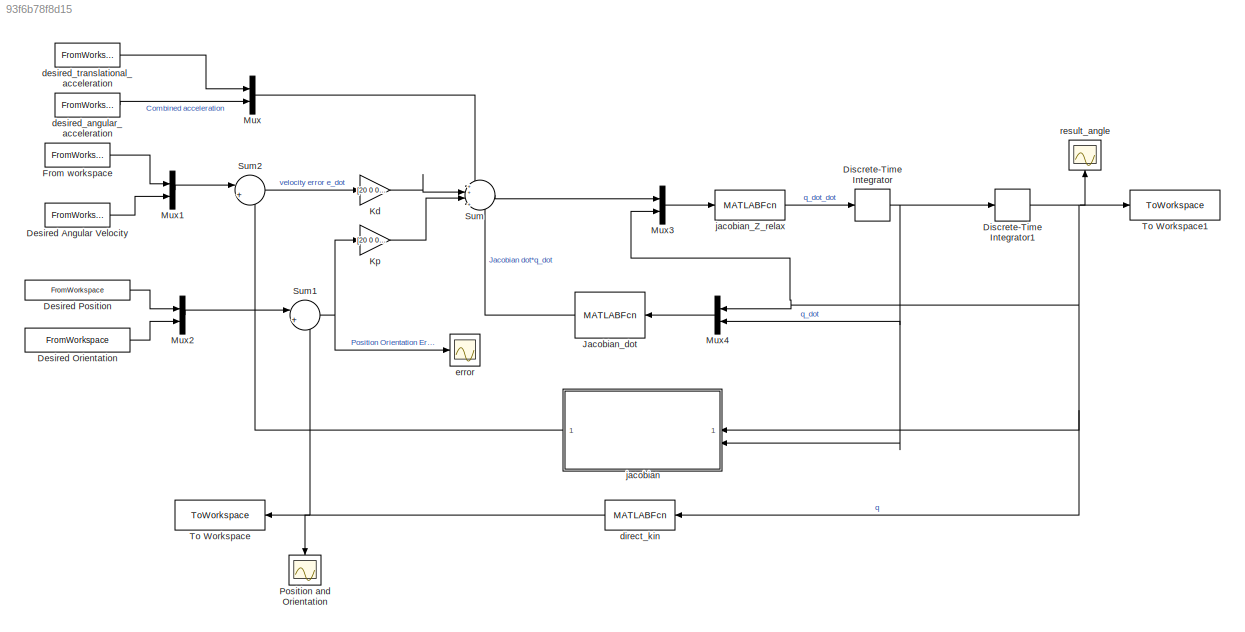
MODEL mdl_93f6b78f8d15
KIND model
CONFIG AbsTol = auto
CONFIG EnableMultiTasking = off
CONFIG FixedStep = 0.001
CONFIG MaxStep = auto
CONFIG MinStep = auto
CONFIG RelTol = 1e-3
CONFIG SampleTimeConstraint = Unconstrained
CONFIG SolverName = ode1
CONFIG StartTime = 0.0
CONFIG StopTime = 4
BLOCK [FromWorkspace] Desired Angular Velocity
  VariableName = [t,theta_d_dot]
BLOCK [FromWorkspace] Desired Orientation
  VariableName = [t,theta_d]
BLOCK [FromWorkspace] Desired Position
  VariableName = [t,pd(:,1),pd(:,2)]
BLOCK [DiscreteIntegrator] Discrete-Time Integrator
  ICPrevOutput = DiscIntNeverNeededParam
  ICPrevScaledInput = DiscIntNeverNeededParam
  InitialCondition = [0;0;0;0]
  InitialConditionSetting = Auto
  SampleTime = Tc
BLOCK [DiscreteIntegrator] Discrete-Time Integrator1
  ICPrevOutput = DiscIntNeverNeededParam
  ICPrevScaledInput = DiscIntNeverNeededParam
  InitialCondition = q0
  InitialConditionSetting = Auto
  LimitOutput = on
  LowerSaturationLimit = [-inf; -inf; 0.25; -inf]
  SampleTime = Tc
  UpperSaturationLimit = [inf;inf;1;inf]
BLOCK [FromWorkspace] From workspace
  VariableName = [t,pd_dot(:,1),pd_dot(:,2)]
BLOCK [MATLABFcn] Jacobian_dot
  MATLABFcn = jacobian_dot
  OutputDimensions = 3
BLOCK [Gain] Kd
  Gain = [20 0 0 ;0 20 0 ;0 0 20 ]
  Multiplication = Matrix(K*u)
BLOCK [Gain] Kp
  Gain = [20 0 0 ;0 20 0 ;0 0 20]
  Multiplication = Matrix(K*u)
BLOCK [Mux] Mux
  DisplayOption = bar
  Inputs = 2
BLOCK [Mux] Mux1
  DisplayOption = bar
  Inputs = 2
BLOCK [Mux] Mux2
  DisplayOption = bar
  Inputs = 2
BLOCK [Mux] Mux3
  DisplayOption = bar
  Inputs = 2
BLOCK [Mux] Mux4
  DisplayOption = bar
  Inputs = 2
  NameLocation = top
BLOCK [Scope] Position and Orientation
  Floating = off
  NameLocation = left
  NumInputPorts = 1
  ScopeSpecificationString = Simulink.scopes.TimeScopeBlockCfg('CurrentConfiguration', extmgr.ConfigurationSet(extmgr.Configuration('Core','General UI',true),extmgr.Configuration('Core','Source UI',true),extmgr.Configuration('Sources','WiredSimulink',true,'DataLoggingVariableName','ScopeData1'),extmgr.Configuration('Visuals','Time Domain',true,'SerializedDisplays',{struct('MinYLimReal','-1.33708','MaxYLimReal','4.03375','YLab...<+1451ch>
BLOCK [Sum] Sum
  Inputs = ++|+-
BLOCK [Sum] Sum1
  Inputs = |+-
BLOCK [Sum] Sum2
  Inputs = |+-
BLOCK [ToWorkspace] To Workspace
  FixptAsFi = on
  MaxDataPoints = inf
  NameLocation = top
  SampleTime = -1
  VariableName = result_orientation
BLOCK [ToWorkspace] To Workspace1
  FixptAsFi = on
  MaxDataPoints = inf
  SampleTime = -1
  Save2DSignal = 2-D array (concatenate along first dimension)
  VariableName = result_angle
BLOCK [FromWorkspace] desired_angular_acceleration
  VariableName = [t,theta_d_dot_dot]
BLOCK [FromWorkspace] desired_translational_acceleration 
  VariableName = [t,pd_dot_dot(:,1),pd_dot_dot(:,2)]
BLOCK [MATLABFcn] direct_kin
  MATLABFcn = direct_kin
  OutputDimensions = 3
BLOCK [Scope] error
  Floating = off
  NumInputPorts = 1
  ScopeSpecificationString = Simulink.scopes.TimeScopeBlockCfg('CurrentConfiguration', extmgr.ConfigurationSet(extmgr.Configuration('Core','General UI',true),extmgr.Configuration('Core','Source UI',true),extmgr.Configuration('Sources','WiredSimulink',true,'DataLoggingVariableName','ScopeData2'),extmgr.Configuration('Visuals','Time Domain',true,'SerializedDisplays',{struct('MinYLimReal','-0.0075','MaxYLimReal','0.00738','YLabe...<+1408ch>
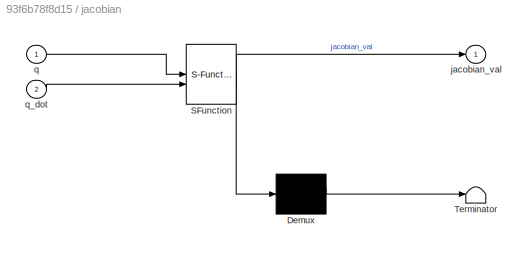
BLOCK [SubSystem] jacobian 
  ErrorFcn = Stateflow.Translate.translate
  PermitHierarchicalResolution = ExplicitOnly
  SFBlockType = MATLAB Function
  ShowPortLabels = FromPortBlockName
  TreatAsAtomicUnit = on
BLOCK [Demux] jacobian / Demux 
  Outputs = 1
BLOCK [S-Function] jacobian / SFunction 
  EnableBusSupport = on
  FunctionName = sf_sfun
  PortCounts = [2 2]
  SFcnIsStateOwnerBlock = off
  SFunctionDeploymentMode = off
  Tag = Stateflow S-Function 2
BLOCK [Terminator] jacobian / Terminator 
BLOCK [Outport] jacobian /jacobian_val
BLOCK [Inport] jacobian /q
BLOCK [Inport] jacobian /q_dot
  Port = 2
BLOCK [MATLABFcn] jacobian_Z_relax
  MATLABFcn = jacobian_z_relax
  OutputDimensions = 4
BLOCK [Scope] result_angle
  Floating = off
  NameLocation = right
  NumInputPorts = 1
  ScopeSpecificationString = Simulink.scopes.TimeScopeBlockCfg('CurrentConfiguration', extmgr.ConfigurationSet(extmgr.Configuration('Core','General UI',true),extmgr.Configuration('Core','Source UI',true),extmgr.Configuration('Sources','WiredSimulink',true),extmgr.Configuration('Visuals','Time Domain',true,'SerializedDisplays',{struct('MinYLimReal','-1.72467','MaxYLimReal','2.65196','YLabelReal','','MinYLimMag','0.00000','MaxY...<+1370ch>
LINE Desired Angular Velocity:1 -> Mux1:2
LINE Desired Orientation:1 -> Mux2:2
LINE Desired Position:1 -> Mux2:1
NET Discrete-Time Integrator1:1 -> Mux3:2, Mux4:1, To Workspace1:1, direct_kin:1, jacobian :1, result_angle:1
NET Discrete-Time Integrator:1 -> Discrete-Time Integrator1:1, Mux4:2, jacobian :2
LINE From workspace:1 -> Mux1:1
LINE Jacobian_dot:1 -> Sum:4
LINE Kd:1 -> Sum:2
LINE Kp:1 -> Sum:3
LINE Mux1:1 -> Sum2:1
LINE Mux2:1 -> Sum1:1
LINE Mux3:1 -> jacobian_Z_relax:1
LINE Mux4:1 -> Jacobian_dot:1
LINE Mux:1 -> Sum:1
NET Sum1:1 -> Kp:1, error:1
LINE Sum2:1 -> Kd:1
LINE Sum:1 -> Mux3:1
LINE desired_angular_acceleration:1 -> Mux:2
LINE desired_translational_acceleration :1 -> Mux:1
NET direct_kin:1 -> Position and Orientation:1, Sum1:2, To Workspace:1
LINE jacobian :1 -> Sum2:2
LINE jacobian_Z_relax:1 -> Discrete-Time Integrator:1
note: NET lines group one-source signal fan-out (src -> all destinations, sorted); 1:1 wires keep LINE
CHART jacobian  states=1 transitions=1
  STATE_LABEL 'eML_blk_kernel()'
  STATE_LABEL 'SCRIPT:\nfunction jacobian_val= fcn(q,q_dot)\n    %input parameters\n    theta1=q(1);\n    theta2=q(2);\n    \n    %robot parameters\n    a1 = 0.5;\n    a2 = 0.5;\n    \n    jacobian_mat=[-a2*sin(theta1 + theta2) - a1*sin(theta1), -a2*sin(theta1 + theta2), 0, 0;\n        a2*cos(theta1 + theta2) + a1*cos(theta1), a2*cos(theta1 + theta2), 0, 0;\n        1, 1, 0, 1];\n    \n    jacobian_val=jacobian_mat*q_dot;\n\nen...<+2ch>'
CHART  states=0 transitions=0
